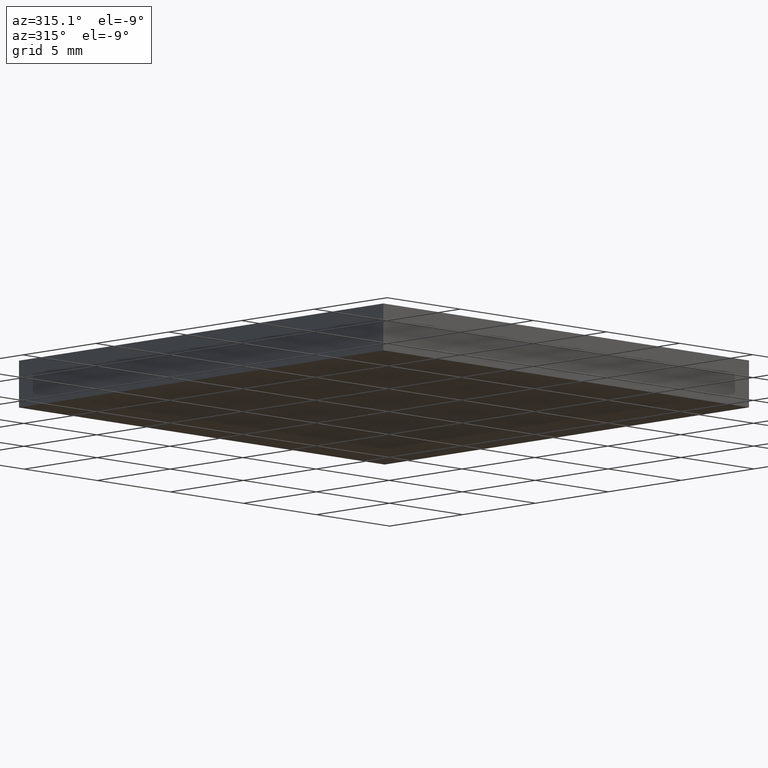
[diagram: clean part render]
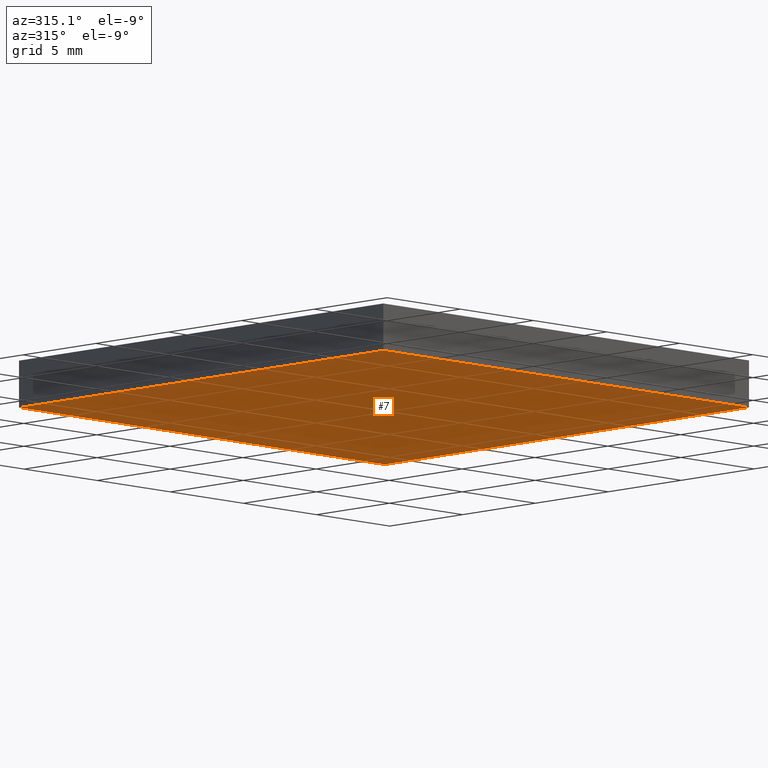
[diagram: same view with one face highlighted and labeled with its STEP entity id]
A machine part, auxiliary view. The second image highlights one B-rep face of the part: STEP entity #7.
In plain terms, the highlighted planar face has unit normal (-0, 0, 1).
Its self-contained STEP definition (entity closure, byte-faithful):
#5 = ORIENTED_EDGE ( 'NONE', *, *, #104, .F. ) ;
#7 = ADVANCED_FACE ( 'NONE', ( #26 ), #86, .F. ) ;
#12 = DIRECTION ( 'NONE',  ( -1.000000000000000000, -0.0000000000000000000, -0.0000000000000000000 ) ) ;
#16 = EDGE_LOOP ( 'NONE', ( #160, #146, #176, #5 ) ) ;
#26 = FACE_OUTER_BOUND ( 'NONE', #16, .T. ) ;
#32 = VECTOR ( 'NONE', #169, 1000.000000000000000 ) ;
#33 = DIRECTION ( 'NONE',  ( -0.0000000000000000000, 0.0000000000000000000, 1.000000000000000000 ) ) ;
#36 = DIRECTION ( 'NONE',  ( -5.551115123125785700E-016, -1.000000000000000000, 0.0000000000000000000 ) ) ;
#53 = CARTESIAN_POINT ( 'NONE',  ( 88.74793577588508200, 49.06324183452660000, 0.0000000000000000000 ) ) ;
#70 = VERTEX_POINT ( 'NONE', #185 ) ;
#86 = PLANE ( 'NONE',  #116 ) ;
#89 = EDGE_CURVE ( 'NONE', #195, #126, #187, .T. ) ;
#92 = CARTESIAN_POINT ( 'NONE',  ( 88.74793577588509700, 74.06324183452659300, 0.0000000000000000000 ) ) ;
#100 = EDGE_CURVE ( 'NONE', #159, #195, #101, .T. ) ;
#101 = LINE ( 'NONE', #133, #32 ) ;
#104 = EDGE_CURVE ( 'NONE', #70, #159, #161, .T. ) ;
#108 = VECTOR ( 'NONE', #149, 1000.000000000000000 ) ;
#109 = CARTESIAN_POINT ( 'NONE',  ( 113.7479357758850800, 49.06324183452660000, 0.0000000000000000000 ) ) ;
#111 = LINE ( 'NONE', #134, #175 ) ;
#114 = VECTOR ( 'NONE', #12, 1000.000000000000000 ) ;
#116 = AXIS2_PLACEMENT_3D ( 'NONE', #147, #33, #131 ) ;
#122 = CARTESIAN_POINT ( 'NONE',  ( 113.7479357758850700, 74.06324183452659300, 0.0000000000000000000 ) ) ;
#126 = VERTEX_POINT ( 'NONE', #92 ) ;
#131 = DIRECTION ( 'NONE',  ( 1.000000000000000000, 0.0000000000000000000, 0.0000000000000000000 ) ) ;
#133 = CARTESIAN_POINT ( 'NONE',  ( 113.7479357758850700, 74.06324183452659300, 0.0000000000000000000 ) ) ;
#134 = CARTESIAN_POINT ( 'NONE',  ( 88.74793577588509700, 74.06324183452659300, 0.0000000000000000000 ) ) ;
#146 = ORIENTED_EDGE ( 'NONE', *, *, #89, .F. ) ;
#147 = CARTESIAN_POINT ( 'NONE',  ( 0.0000000000000000000, 0.0000000000000000000, 0.0000000000000000000 ) ) ;
#149 = DIRECTION ( 'NONE',  ( 1.000000000000000000, 0.0000000000000000000, 0.0000000000000000000 ) ) ;
#159 = VERTEX_POINT ( 'NONE', #109 ) ;
#160 = ORIENTED_EDGE ( 'NONE', *, *, #163, .F. ) ;
#161 = LINE ( 'NONE', #53, #108 ) ;
#163 = EDGE_CURVE ( 'NONE', #126, #70, #111, .T. ) ;
#167 = CARTESIAN_POINT ( 'NONE',  ( 88.74793577588509700, 74.06324183452659300, 0.0000000000000000000 ) ) ;
#169 = DIRECTION ( 'NONE',  ( -5.551115123125785700E-016, 1.000000000000000000, -0.0000000000000000000 ) ) ;
#175 = VECTOR ( 'NONE', #36, 1000.000000000000000 ) ;
#176 = ORIENTED_EDGE ( 'NONE', *, *, #100, .F. ) ;
#185 = CARTESIAN_POINT ( 'NONE',  ( 88.74793577588508200, 49.06324183452660000, 0.0000000000000000000 ) ) ;
#187 = LINE ( 'NONE', #167, #114 ) ;
#195 = VERTEX_POINT ( 'NONE', #122 ) ;